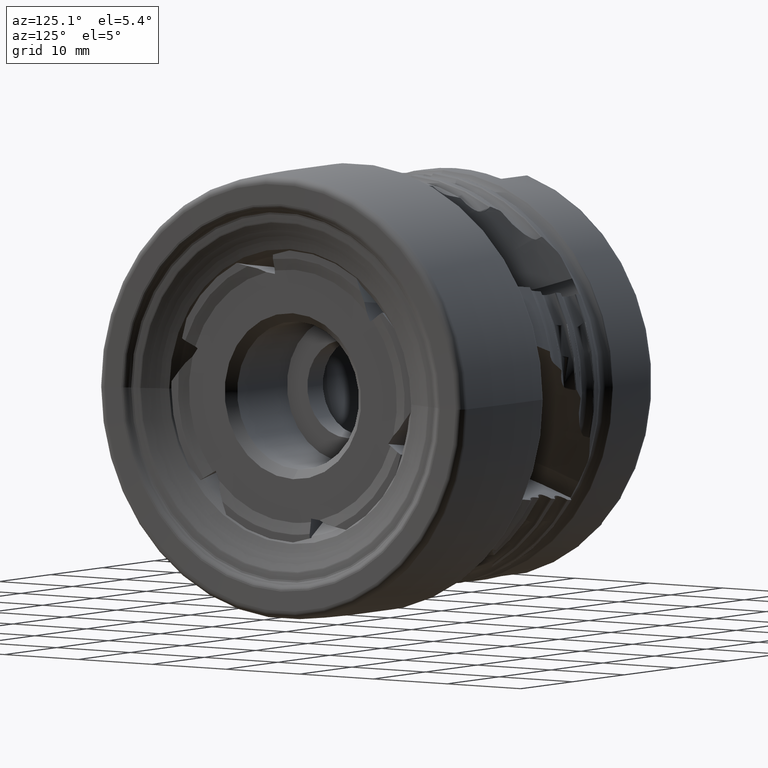
[diagram: clean part render]
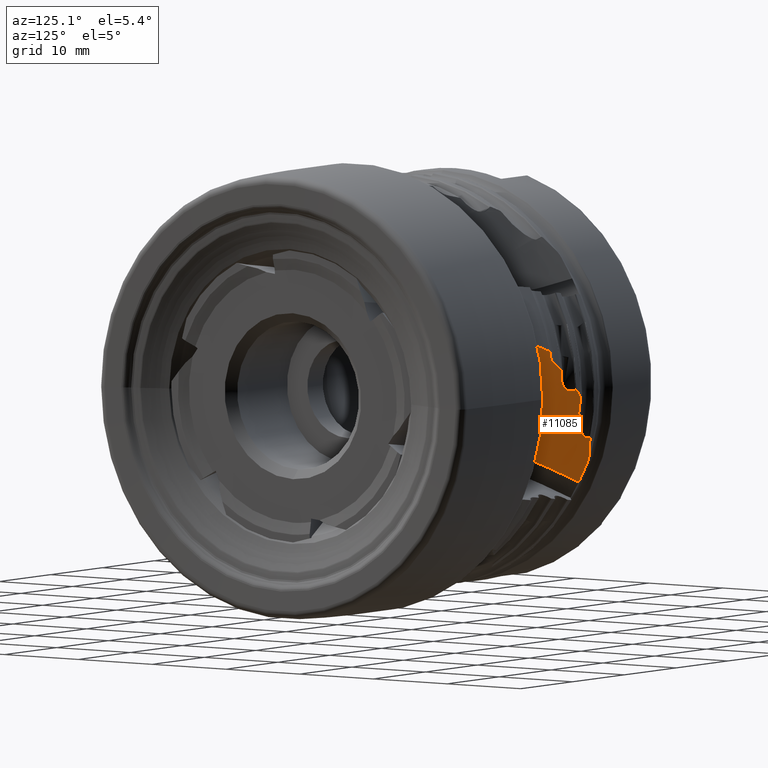
[diagram: same view with one face highlighted and labeled with its STEP entity id]
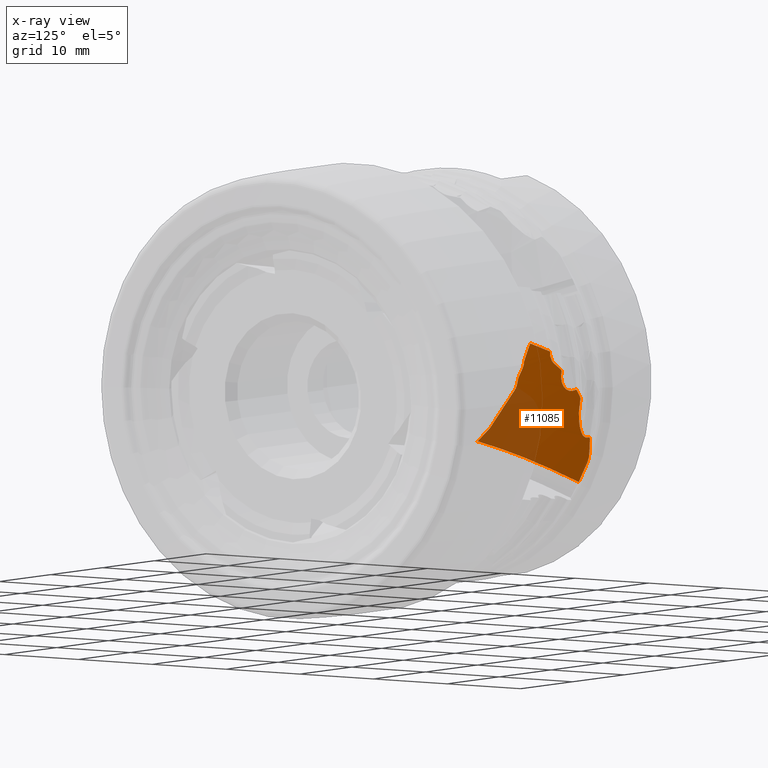
[diagram: x-ray of the same camera — body ghosted, the highlighted face saturated]
A machine part, auxiliary view. The second image highlights one B-rep face of the part: STEP entity #11085.
The next image is the same camera in x-ray: the body ghosted, the highlighted face saturated — about 33% of this face is hidden behind the body in this view.
In plain terms, the highlighted conical surface has half-angle 10 deg.
Its self-contained STEP definition (entity closure, byte-faithful):
#41 = CARTESIAN_POINT ( 'NONE',  ( -15.26855124882291470, 21.81667028635836658, 4.503115789526411561 ) ) ;
#110 = CARTESIAN_POINT ( 'NONE',  ( -14.87005169857932962, 22.43625750165416832, 5.422201539355816280 ) ) ;
#142 = EDGE_CURVE ( 'NONE', #6212, #18076, #7275, .T. ) ;
#169 = B_SPLINE_CURVE_WITH_KNOTS ( 'NONE', 3,
 ( #1466, #12750, #9795, #4365 ),
 .UNSPECIFIED., .F., .F.,
 ( 4, 4 ),
 ( 5.091962965538693822E-07, 0.0004996637936394589643 ),
 .UNSPECIFIED. ) ;
#239 = CARTESIAN_POINT ( 'NONE',  ( -27.80607010177604010, 21.30551822010416529, -8.427565206542489307 ) ) ;
#244 = CARTESIAN_POINT ( 'NONE',  ( -15.90896133935691381, 20.99278452312187326, 3.205419004330242849 ) ) ;
#321 = VERTEX_POINT ( 'NONE', #10061 ) ;
#343 = B_SPLINE_CURVE_WITH_KNOTS ( 'NONE', 3,
 ( #5829, #7295, #17347, #1559 ),
 .UNSPECIFIED., .F., .F.,
 ( 4, 4 ),
 ( 2.201865133479440219E-06, 0.0002293505864840517713 ),
 .UNSPECIFIED. ) ;
#346 = B_SPLINE_CURVE_WITH_KNOTS ( 'NONE', 3,
 ( #3306, #8888, #1674, #8753 ),
 .UNSPECIFIED., .F., .F.,
 ( 4, 4 ),
 ( 0.001640914403538714424, 0.005217021135695581145 ),
 .UNSPECIFIED. ) ;
#368 = EDGE_CURVE ( 'NONE', #6788, #18028, #343, .T. ) ;
#387 = CARTESIAN_POINT ( 'NONE',  ( -16.17100455448463947, 20.29929194143642945, 2.209252760156967366 ) ) ;
#450 = CARTESIAN_POINT ( 'NONE',  ( -23.40651101225501307, 22.99459289987852628, 0.2371045010552281507 ) ) ;
#451 = CARTESIAN_POINT ( 'NONE',  ( -16.17100455448463947, 20.29929194143642945, 2.209252760156967366 ) ) ;
#454 = CARTESIAN_POINT ( 'NONE',  ( -27.44702365024415158, 21.95627381036220882, -6.885970354315569253 ) ) ;
#515 = ORIENTED_EDGE ( 'NONE', *, *, #10284, .F. ) ;
#586 = CONICAL_SURFACE ( 'NONE', #16912, 22.64713511537622637, 0.1745329251994370001 ) ;
#587 = CARTESIAN_POINT ( 'NONE',  ( -23.22472531801336615, 22.80835589659339746, 0.1894172346905117488 ) ) ;
#615 = CARTESIAN_POINT ( 'NONE',  ( -16.85131394500600166, 18.82961904891037364, 4.439181376403599139E-15 ) ) ;
#647 = CARTESIAN_POINT ( 'NONE',  ( -24.26766911949633965, 22.94176245283136240, -0.8461488794678320158 ) ) ;
#739 = ORIENTED_EDGE ( 'NONE', *, *, #17459, .T. ) ;
#752 = EDGE_CURVE ( 'NONE', #2165, #14771, #6004, .T. ) ;
#777 = CARTESIAN_POINT ( 'NONE',  ( -22.47094346793913644, 22.30390003859425363, 0.3121301263947673932 ) ) ;
#933 = B_SPLINE_CURVE_WITH_KNOTS ( 'NONE', 3,
 ( #8519, #15807, #110, #18668 ),
 .UNSPECIFIED., .F., .F.,
 ( 4, 4 ),
 ( 5.997672983098196866E-07, 0.001228678167327259228 ),
 .UNSPECIFIED. ) ;
#989 = CARTESIAN_POINT ( 'NONE',  ( -20.68006665952766809, 22.84494059295221646, 2.666362929754161115 ) ) ;
#1024 = CARTESIAN_POINT ( 'NONE',  ( -28.02081468397080855, 20.06062570200377593, -10.53523919910422180 ) ) ;
#1057 = CARTESIAN_POINT ( 'NONE',  ( -20.78942813644570009, 22.79823092200463819, 2.514633919070633272 ) ) ;
#1175 = CARTESIAN_POINT ( 'NONE',  ( -25.41797234707089714, 21.93879845486146252, -3.716995152795235402 ) ) ;
#1197 = CARTESIAN_POINT ( 'NONE',  ( -20.64021278201283138, 22.84162297052917623, 2.694486977551385110 ) ) ;
#1301 = ORIENTED_EDGE ( 'NONE', *, *, #2820, .F. ) ;
#1353 = CARTESIAN_POINT ( 'NONE',  ( -14.69161471558946630, 22.73932985926478878, 5.858741120913173894 ) ) ;
#1356 = CARTESIAN_POINT ( 'NONE',  ( -16.85131394500600166, 18.82961904891037364, 4.439181376403599139E-15 ) ) ;
#1364 = CARTESIAN_POINT ( 'NONE',  ( -15.90896133935691381, 20.99278452312187326, 3.205419004330242849 ) ) ;
#1387 = CARTESIAN_POINT ( 'NONE',  ( -16.47749897545964259, 14.44581455445120532, -5.420247445598623592 ) ) ;
#1427 = EDGE_LOOP ( 'NONE', ( #3857, #1855, #4486, #4280, #2306, #3650, #1536, #17981, #17652, #7991, #15687, #13807, #15573, #17054, #8667, #17807, #13506, #739, #1868, #515, #15563, #17215, #13479, #6257, #11718, #5004, #12899, #17534, #9396, #3400, #1301, #14931, #4830 ) ) ;
#1466 = CARTESIAN_POINT ( 'NONE',  ( -16.45361573362454521, 19.89302954922868594, 1.559304394736011679 ) ) ;
#1483 = B_SPLINE_CURVE_WITH_KNOTS ( 'NONE', 3,
 ( #9599, #8271, #8140, #18283 ),
 .UNSPECIFIED., .F., .F.,
 ( 4, 4 ),
 ( 6.056968312710512013E-07, 0.0003393238176195059979 ),
 .UNSPECIFIED. ) ;
#1536 = ORIENTED_EDGE ( 'NONE', *, *, #18369, .F. ) ;
#1559 = CARTESIAN_POINT ( 'NONE',  ( -16.81930266459457712, 19.37228896963575409, 0.7114021565693718907 ) ) ;
#1660 = CARTESIAN_POINT ( 'NONE',  ( -16.14970370575481695, 20.36864433607288660, 2.307136152968963572 ) ) ;
#1674 = CARTESIAN_POINT ( 'NONE',  ( -16.90536003777134511, 23.07924280636870407, 5.451268094262448294 ) ) ;
#1837 = EDGE_CURVE ( 'NONE', #321, #2693, #2872, .T. ) ;
#1855 = ORIENTED_EDGE ( 'NONE', *, *, #4306, .F. ) ;
#1868 = ORIENTED_EDGE ( 'NONE', *, *, #15498, .F. ) ;
#1898 = CARTESIAN_POINT ( 'NONE',  ( -15.80531335188685027, 21.14735382403872421, 3.445143056737726361 ) ) ;
#1906 = EDGE_CURVE ( 'NONE', #15720, #10535, #14409, .T. ) ;
#2165 = VERTEX_POINT ( 'NONE', #12065 ) ;
#2204 = CARTESIAN_POINT ( 'NONE',  ( -24.18147131725948995, 22.99014681749628863, -0.6751719861068721240 ) ) ;
#2306 = ORIENTED_EDGE ( 'NONE', *, *, #15414, .F. ) ;
#2347 = B_SPLINE_CURVE_WITH_KNOTS ( 'NONE', 3,
 ( #6928, #8342, #16879, #2564 ),
 .UNSPECIFIED., .F., .F.,
 ( 4, 4 ),
 ( 7.979400356759385171E-07, 0.0002821608461363248467 ),
 .UNSPECIFIED. ) ;
#2383 = EDGE_CURVE ( 'NONE', #7410, #6788, #10516, .T. ) ;
#2564 = CARTESIAN_POINT ( 'NONE',  ( -15.90896133935691381, 20.99278452312187326, 3.205419004330242849 ) ) ;
#2583 = CARTESIAN_POINT ( 'NONE',  ( -24.14021278201282783, 22.99155670236084248, -0.6231535943296789837 ) ) ;
#2682 = CARTESIAN_POINT ( 'NONE',  ( -16.81930266459457712, 19.37228896963575409, 0.7114021565693718907 ) ) ;
#2693 = VERTEX_POINT ( 'NONE', #13960 ) ;
#2723 = B_SPLINE_CURVE_WITH_KNOTS ( 'NONE', 3,
 ( #16666, #7987, #18264, #12291 ),
 .UNSPECIFIED., .F., .F.,
 ( 4, 4 ),
 ( 9.501387037158697003E-07, 0.0005963306843290852111 ),
 .UNSPECIFIED. ) ;
#2812 = CARTESIAN_POINT ( 'NONE',  ( -14.61659842400750620, 22.91153607852224994, 6.097392518328906164 ) ) ;
#2820 = EDGE_CURVE ( 'NONE', #12840, #11248, #5035, .T. ) ;
#2863 = CARTESIAN_POINT ( 'NONE',  ( -26.50666080885802600, 21.95707442417994315, -5.318131793748561265 ) ) ;
#2872 = B_SPLINE_CURVE_WITH_KNOTS ( 'NONE', 3,
 ( #7057, #1353, #11376, #2812 ),
 .UNSPECIFIED., .F., .F.,
 ( 4, 4 ),
 ( 8.163396815924626714E-07, 0.0004563742919327287554 ),
 .UNSPECIFIED. ) ;
#2908 = CARTESIAN_POINT ( 'NONE',  ( -24.30607010177588378, 22.89159018406107293, -0.9612808032641314560 ) ) ;
#2994 = CARTESIAN_POINT ( 'NONE',  ( -26.14898016930109037, 21.81915652623611024, -4.950721107140523713 ) ) ;
#3113 = CARTESIAN_POINT ( 'NONE',  ( -23.29392989822432014, 22.91040556069122403, 0.2495575733127972651 ) ) ;
#3306 = CARTESIAN_POINT ( 'NONE',  ( -14.61659842400750620, 22.91153607852224994, 6.097392518328906164 ) ) ;
#3397 = CARTESIAN_POINT ( 'NONE',  ( -26.80047387179308060, 22.29234182621327420, -5.333441569371050406 ) ) ;
#3400 = ORIENTED_EDGE ( 'NONE', *, *, #7259, .F. ) ;
#3414 = CARTESIAN_POINT ( 'NONE',  ( -24.21337165111777878, 22.97719146188154937, -0.7316888342751988183 ) ) ;
#3540 = CARTESIAN_POINT ( 'NONE',  ( -22.58510316870466994, 22.34148128584305937, 0.2457448873278721968 ) ) ;
#3650 = ORIENTED_EDGE ( 'NONE', *, *, #13900, .F. ) ;
#3771 = DIRECTION ( 'NONE',  ( 0.1391731009600657709, -0.4951340343707951730, -0.8575973040867490571 ) ) ;
#3832 = DIRECTION ( 'NONE',  ( 0.0000000000000000000, 0.8660254037844328234, -0.5000000000000099920 ) ) ;
#3857 = ORIENTED_EDGE ( 'NONE', *, *, #1837, .F. ) ;
#3887 = VERTEX_POINT ( 'NONE', #6789 ) ;
#3891 = CARTESIAN_POINT ( 'NONE',  ( -16.78389916639701340, 19.45945674204698150, 0.8411767779509065068 ) ) ;
#4138 = B_SPLINE_CURVE_WITH_KNOTS ( 'NONE', 3,
 ( #14830, #2204, #3414, #647, #10572, #10629 ),
 .UNSPECIFIED., .F., .F.,
 ( 4, 2, 4 ),
 ( 3.173699477123201477E-07, 0.0001968150992286581732, 0.0003933128285096040128 ),
 .UNSPECIFIED. ) ;
#4254 = B_SPLINE_CURVE_WITH_KNOTS ( 'NONE', 3,
 ( #4455, #13278, #4579, #4640 ),
 .UNSPECIFIED., .F., .F.,
 ( 4, 4 ),
 ( 2.040707912243481854E-06, 0.002459269705208161870 ),
 .UNSPECIFIED. ) ;
#4280 = ORIENTED_EDGE ( 'NONE', *, *, #16023, .F. ) ;
#4306 = EDGE_CURVE ( 'NONE', #10535, #321, #933, .T. ) ;
#4319 = B_SPLINE_CURVE_WITH_KNOTS ( 'NONE', 3,
 ( #14752, #3397, #8852, #10557, #7669, #7557, #16197, #16145, #9044, #7617 ),
 .UNSPECIFIED., .F., .F.,
 ( 4, 2, 2, 2, 4 ),
 ( 4.117319824116709145E-07, 4.073260126436114415E-05, 8.105347054631062691E-05, 0.0001616952091102095653, 0.0003229786862380077403 ),
 .UNSPECIFIED. ) ;
#4337 = CARTESIAN_POINT ( 'NONE',  ( -16.25518053409054176, 20.12791270057322990, 1.952507508722820528 ) ) ;
#4365 = CARTESIAN_POINT ( 'NONE',  ( -16.25518053409054176, 20.12791270057322990, 1.952507508722820528 ) ) ;
#4455 = CARTESIAN_POINT ( 'NONE',  ( -27.80607010177604010, 21.30551822010416529, -8.427565206542489307 ) ) ;
#4462 = CARTESIAN_POINT ( 'NONE',  ( -16.76602882753733326, 19.50302366377869845, 0.9060293372061447581 ) ) ;
#4486 = ORIENTED_EDGE ( 'NONE', *, *, #1906, .F. ) ;
#4558 = CARTESIAN_POINT ( 'NONE',  ( -16.10663191695068619, 20.50736126770210177, 2.502791241297559033 ) ) ;
#4579 = CARTESIAN_POINT ( 'NONE',  ( -27.96274391729710729, 20.48819653159388565, -9.838877487915564046 ) ) ;
#4640 = CARTESIAN_POINT ( 'NONE',  ( -28.02081468397080855, 20.06062570200377593, -10.53523919910422180 ) ) ;
#4685 = B_SPLINE_CURVE_WITH_KNOTS ( 'NONE', 3,
 ( #14246, #17110, #18685, #9949, #10009, #14312, #15767, #5727 ),
 .UNSPECIFIED., .F., .F.,
 ( 4, 2, 2, 4 ),
 ( 4.059168419037792843E-07, 0.001149958348928645062, 0.001724734564972013086, 0.002299510781015381110 ),
 .UNSPECIFIED. ) ;
#4830 = ORIENTED_EDGE ( 'NONE', *, *, #7449, .F. ) ;
#5004 = ORIENTED_EDGE ( 'NONE', *, *, #10156, .F. ) ;
#5035 = B_SPLINE_CURVE_WITH_KNOTS ( 'NONE', 3,
 ( #9756, #17037, #8417, #1197 ),
 .UNSPECIFIED., .F., .F.,
 ( 4, 4 ),
 ( 2.335929685874925585E-07, 0.001269638215701828594 ),
 .UNSPECIFIED. ) ;
#5323 = CARTESIAN_POINT ( 'NONE',  ( -16.65317086511453937, 19.67090525702619530, 1.177707117520940816 ) ) ;
#5348 = CIRCLE ( 'NONE', #17883, 26.60000000000000142 ) ;
#5396 = CARTESIAN_POINT ( 'NONE',  ( -16.80165780577470258, 19.41587911568378289, 0.7763008345492691253 ) ) ;
#5462 = B_SPLINE_CURVE_WITH_KNOTS ( 'NONE', 3,
 ( #1364, #8467, #14230, #15695 ),
 .UNSPECIFIED., .F., .F.,
 ( 4, 4 ),
 ( 5.889387353570528641E-07, 0.0003040723738602136325 ),
 .UNSPECIFIED. ) ;
#5610 = EDGE_CURVE ( 'NONE', #6919, #7410, #18414, .T. ) ;
#5611 = VERTEX_POINT ( 'NONE', #8974 ) ;
#5727 = CARTESIAN_POINT ( 'NONE',  ( -19.57899999999999707, 22.74955201796856841, 3.384949479939448835 ) ) ;
#5744 = CARTESIAN_POINT ( 'NONE',  ( -26.31763482172235413, 21.86045836076529625, -5.153667214521905571 ) ) ;
#5758 = VERTEX_POINT ( 'NONE', #16882 ) ;
#5772 = CARTESIAN_POINT ( 'NONE',  ( -27.78990556497908315, 21.38756636924111021, -8.285356641722373183 ) ) ;
#5829 = CARTESIAN_POINT ( 'NONE',  ( -16.84005700675518824, 19.23829927560531416, 0.5291590201106586289 ) ) ;
#5853 = VERTEX_POINT ( 'NONE', #387 ) ;
#6004 = B_SPLINE_CURVE_WITH_KNOTS ( 'NONE', 3,
 ( #5323, #13974, #15435, #6812 ),
 .UNSPECIFIED., .F., .F.,
 ( 4, 4 ),
 ( 4.917082214325968314E-07, 0.0004850305958954704557 ),
 .UNSPECIFIED. ) ;
#6212 = VERTEX_POINT ( 'NONE', #17783 ) ;
#6257 = ORIENTED_EDGE ( 'NONE', *, *, #18086, .F. ) ;
#6403 = CARTESIAN_POINT ( 'NONE',  ( -16.75194087550767108, 15.35380829058767560, -4.404451069025665966 ) ) ;
#6406 = CARTESIAN_POINT ( 'NONE',  ( -22.04999999999994387, 22.24066103879084366, 0.6445902245692860522 ) ) ;
#6472 = CARTESIAN_POINT ( 'NONE',  ( -15.50847886372658557, 21.44246804675199769, 3.938853875497049017 ) ) ;
#6522 = CARTESIAN_POINT ( 'NONE',  ( -22.14924809175642295, 22.24334261363025078, 0.5520663314348417394 ) ) ;
#6788 = VERTEX_POINT ( 'NONE', #10884 ) ;
#6789 = CARTESIAN_POINT ( 'NONE',  ( -20.80607010177602234, 22.77781366641420036, 2.473897030159260879 ) ) ;
#6812 = CARTESIAN_POINT ( 'NONE',  ( -16.45361573362454521, 19.89302954922868594, 1.559304394736011679 ) ) ;
#6815 = CARTESIAN_POINT ( 'NONE',  ( -16.76602882753733326, 19.50302366377869845, 0.9060293372061447581 ) ) ;
#6878 = CARTESIAN_POINT ( 'NONE',  ( -23.45978721798716293, 22.99926823209815652, 0.1834687657352973011 ) ) ;
#6915 = CARTESIAN_POINT ( 'NONE',  ( -22.04999999999994387, 22.24066103879084366, 0.6445902245692860522 ) ) ;
#6919 = VERTEX_POINT ( 'NONE', #11272 ) ;
#6920 = EDGE_CURVE ( 'NONE', #14647, #12840, #4685, .T. ) ;
#6926 = CARTESIAN_POINT ( 'NONE',  ( -24.30607010177588378, 22.89159018406107293, -0.9612808032641314560 ) ) ;
#6928 = CARTESIAN_POINT ( 'NONE',  ( -15.97985353949620269, 20.83946486264967746, 2.980402421382444267 ) ) ;
#6990 = CARTESIAN_POINT ( 'NONE',  ( -25.29409862967760958, 21.99732374772320043, -3.464978002444697669 ) ) ;
#7057 = CARTESIAN_POINT ( 'NONE',  ( -14.72881838413048428, 22.65334869105859994, 5.739231838391088303 ) ) ;
#7115 = B_SPLINE_CURVE_WITH_KNOTS ( 'NONE', 3,
 ( #3113, #10399, #7571, #450, #14586, #7515 ),
 .UNSPECIFIED., .F., .F.,
 ( 4, 2, 4 ),
 ( 3.927169407414424580E-07, 0.0001121091843428903925, 0.0002238256517450392909 ),
 .UNSPECIFIED. ) ;
#7166 = CARTESIAN_POINT ( 'NONE',  ( -16.45361573362454521, 19.89302954922868594, 1.559304394736011679 ) ) ;
#7239 = CARTESIAN_POINT ( 'NONE',  ( -27.76896784328286216, 21.46464480649369122, -8.141281594835193758 ) ) ;
#7259 = EDGE_CURVE ( 'NONE', #11248, #3887, #15744, .T. ) ;
#7275 = B_SPLINE_CURVE_WITH_KNOTS ( 'NONE', 3,
 ( #16219, #7575, #454, #10454 ),
 .UNSPECIFIED., .F., .F.,
 ( 4, 4 ),
 ( 5.560734022995215786E-07, 0.002183789727091150958 ),
 .UNSPECIFIED. ) ;
#7287 = B_SPLINE_CURVE_WITH_KNOTS ( 'NONE', 3,
 ( #8334, #18280, #11034, #16868 ),
 .UNSPECIFIED., .F., .F.,
 ( 4, 4 ),
 ( 7.655759633891584587E-07, 0.0003207258295503649268 ),
 .UNSPECIFIED. ) ;
#7295 = CARTESIAN_POINT ( 'NONE',  ( -16.83317914987259201, 19.28296523558622155, 0.5899093106922244090 ) ) ;
#7410 = VERTEX_POINT ( 'NONE', #1356 ) ;
#7449 = EDGE_CURVE ( 'NONE', #2693, #14647, #346, .T. ) ;
#7515 = CARTESIAN_POINT ( 'NONE',  ( -23.45978721798716293, 22.99926823209815652, 0.1834687657352973011 ) ) ;
#7557 = CARTESIAN_POINT ( 'NONE',  ( -26.86478883395756156, 22.34016500045726517, -5.373566064035836476 ) ) ;
#7571 = CARTESIAN_POINT ( 'NONE',  ( -23.34422859238959447, 22.96526129438188946, 0.2673103197873011871 ) ) ;
#7575 = CARTESIAN_POINT ( 'NONE',  ( -27.22152200162650004, 22.15273467252684014, -6.222519385360984145 ) ) ;
#7617 = CARTESIAN_POINT ( 'NONE',  ( -26.95978721798715583, 22.31735395201003058, -5.561988185954906072 ) ) ;
#7669 = CARTESIAN_POINT ( 'NONE',  ( -26.83787952557930012, 22.32777069424870220, -5.346295932674219209 ) ) ;
#7690 = CARTESIAN_POINT ( 'NONE',  ( -22.04999999999994387, 22.24066103879084366, 0.6445902245692860522 ) ) ;
#7987 = CARTESIAN_POINT ( 'NONE',  ( -16.06485614051097599, 20.61803975610817119, 2.662139149099508106 ) ) ;
#7991 = ORIENTED_EDGE ( 'NONE', *, *, #17311, .F. ) ;
#8140 = CARTESIAN_POINT ( 'NONE',  ( -16.69112504211072689, 19.61497980294176813, 1.087265284715974056 ) ) ;
#8271 = CARTESIAN_POINT ( 'NONE',  ( -16.72874684920491006, 19.55902227562535955, 0.9967052012828938601 ) ) ;
#8276 = CARTESIAN_POINT ( 'NONE',  ( -25.05997663747112014, 22.13114644320063107, -2.963239422900530773 ) ) ;
#8334 = CARTESIAN_POINT ( 'NONE',  ( -16.25518053409054176, 20.12791270057322990, 1.952507508722820528 ) ) ;
#8342 = CARTESIAN_POINT ( 'NONE',  ( -15.95634574872419797, 20.89056204772044367, 3.055453065851434058 ) ) ;
#8344 = CARTESIAN_POINT ( 'NONE',  ( -20.64021278201283138, 22.84162297052917623, 2.694486977551385110 ) ) ;
#8367 = CARTESIAN_POINT ( 'NONE',  ( -16.84005700675518824, 19.23829927560531416, 0.5291590201106586289 ) ) ;
#8417 = CARTESIAN_POINT ( 'NONE',  ( -20.29504106175960843, 22.81288926855789612, 2.938067441084319498 ) ) ;
#8428 = CARTESIAN_POINT ( 'NONE',  ( -27.80607010177604010, 21.30551822010416529, -8.427565206542489307 ) ) ;
#8447 = CARTESIAN_POINT ( 'NONE',  ( -20.80607010177602234, 22.77781366641420036, 2.473897030159260879 ) ) ;
#8452 = EDGE_CURVE ( 'NONE', #18129, #6212, #4319, .T. ) ;
#8467 = CARTESIAN_POINT ( 'NONE',  ( -15.87460725026492270, 21.04429004314799556, 3.285422771920190055 ) ) ;
#8519 = CARTESIAN_POINT ( 'NONE',  ( -15.14553962347132376, 22.00447026194424538, 4.783472062333293806 ) ) ;
#8540 = CARTESIAN_POINT ( 'NONE',  ( -23.29392989822432014, 22.91040556069122403, 0.2495575733127972651 ) ) ;
#8645 = CARTESIAN_POINT ( 'NONE',  ( -27.64021278201137832, 21.72542010344207952, -7.550239819300737842 ) ) ;
#8667 = ORIENTED_EDGE ( 'NONE', *, *, #2383, .F. ) ;
#8753 = CARTESIAN_POINT ( 'NONE',  ( -17.99999999999999645, 23.18409937771510343, 4.961271716428176326 ) ) ;
#8820 = CARTESIAN_POINT ( 'NONE',  ( -15.50847886372658557, 21.44246804675199769, 3.938853875497049017 ) ) ;
#8852 = CARTESIAN_POINT ( 'NONE',  ( -26.80886016426049423, 22.30342389184332674, -5.332010430501711973 ) ) ;
#8888 = CARTESIAN_POINT ( 'NONE',  ( -15.77665595735320814, 22.98383474420085193, 5.825723361038326331 ) ) ;
#8974 = CARTESIAN_POINT ( 'NONE',  ( -25.54999999999999005, 21.89354496434932429, -3.966760503737820187 ) ) ;
#9044 = CARTESIAN_POINT ( 'NONE',  ( -26.94067509475124922, 22.32937460861800361, -5.513755568537078489 ) ) ;
#9065 = CARTESIAN_POINT ( 'NONE',  ( -22.25245308539774314, 22.25479541098812319, 0.4657751535669206189 ) ) ;
#9160 = CARTESIAN_POINT ( 'NONE',  ( -16.90212305840698193, 16.81826697093279321, -2.605961294605958489 ) ) ;
#9243 = EDGE_CURVE ( 'NONE', #13379, #5853, #7287, .T. ) ;
#9396 = ORIENTED_EDGE ( 'NONE', *, *, #12689, .F. ) ;
#9462 = EDGE_CURVE ( 'NONE', #5853, #14102, #11989, .T. ) ;
#9513 = EDGE_CURVE ( 'NONE', #11736, #6919, #11507, .T. ) ;
#9535 = FACE_OUTER_BOUND ( 'NONE', #1427, .T. ) ;
#9551 = CARTESIAN_POINT ( 'NONE',  ( -20.64021278201283138, 22.84162297052917623, 2.694486977551385110 ) ) ;
#9599 = CARTESIAN_POINT ( 'NONE',  ( -16.76602882753733326, 19.50302366377869845, 0.9060293372061447581 ) ) ;
#9612 = CARTESIAN_POINT ( 'NONE',  ( -20.71290058898073383, 22.83803543414088466, 2.630292870984136666 ) ) ;
#9728 = CARTESIAN_POINT ( 'NONE',  ( -17.99999999999999645, 23.18409937771510343, 4.961271716428176326 ) ) ;
#9730 = CARTESIAN_POINT ( 'NONE',  ( -26.79392989822409277, 22.28130409122486810, -5.337831950529211333 ) ) ;
#9756 = CARTESIAN_POINT ( 'NONE',  ( -19.57899999999999707, 22.74955201796856841, 3.384949479939448835 ) ) ;
#9795 = CARTESIAN_POINT ( 'NONE',  ( -16.32210974550112326, 20.04965762066219526, 1.821812054571691597 ) ) ;
#9878 = B_SPLINE_CURVE_WITH_KNOTS ( 'NONE', 3,
 ( #1898, #11735, #17810, #13373 ),
 .UNSPECIFIED., .F., .F.,
 ( 4, 4 ),
 ( 4.413634125914239391E-07, 0.0006477075299693001859 ),
 .UNSPECIFIED. ) ;
#9949 = CARTESIAN_POINT ( 'NONE',  ( -18.81252761767578008, 22.79618477659926512, 3.967276056493671987 ) ) ;
#9973 = VERTEX_POINT ( 'NONE', #14629 ) ;
#10009 = CARTESIAN_POINT ( 'NONE',  ( -18.95566487426721025, 22.76745565573502006, 3.836954365033203196 ) ) ;
#10033 = CARTESIAN_POINT ( 'NONE',  ( -26.37810406465962387, 21.88376810854832399, -5.215945363602217277 ) ) ;
#10061 = CARTESIAN_POINT ( 'NONE',  ( -14.72881838413048428, 22.65334869105859994, 5.739231838391088303 ) ) ;
#10156 = EDGE_CURVE ( 'NONE', #9973, #18640, #14784, .T. ) ;
#10165 = CARTESIAN_POINT ( 'NONE',  ( -25.71776792278861734, 21.84225854977619719, -4.277295842519104774 ) ) ;
#10268 = CARTESIAN_POINT ( 'NONE',  ( -24.14021278201282783, 22.99155670236084248, -0.6231535943296789837 ) ) ;
#10284 = EDGE_CURVE ( 'NONE', #18076, #10954, #17338, .T. ) ;
#10399 = CARTESIAN_POINT ( 'NONE',  ( -23.31292661874583416, 22.93841828675985184, 0.2660661512327001654 ) ) ;
#10423 = EDGE_CURVE ( 'NONE', #10455, #13488, #15999, .T. ) ;
#10454 = CARTESIAN_POINT ( 'NONE',  ( -27.64021278201137832, 21.72542010344207952, -7.550239819300737842 ) ) ;
#10455 = VERTEX_POINT ( 'NONE', #6406 ) ;
#10489 = DIRECTION ( 'NONE',  ( 0.1391731009600657709, -0.4951340343707951175, -0.8575973040867489461 ) ) ;
#10500 = VERTEX_POINT ( 'NONE', #1024 ) ;
#10516 = B_SPLINE_CURVE_WITH_KNOTS ( 'NONE', 3,
 ( #11002, #12269, #11137, #8367 ),
 .UNSPECIFIED., .F., .F.,
 ( 4, 4 ),
 ( 0.004956782114515067422, 0.005625476760856101995 ),
 .UNSPECIFIED. ) ;
#10535 = VERTEX_POINT ( 'NONE', #12349 ) ;
#10557 = CARTESIAN_POINT ( 'NONE',  ( -26.82796721551796537, 22.32146964053153226, -5.338645950778342808 ) ) ;
#10572 = CARTESIAN_POINT ( 'NONE',  ( -24.28928606113966282, 22.91894069614726703, -0.9036215481361643542 ) ) ;
#10629 = CARTESIAN_POINT ( 'NONE',  ( -24.30607010177588378, 22.89159018406107293, -0.9612808032641314560 ) ) ;
#10636 = CARTESIAN_POINT ( 'NONE',  ( -23.13694570481051116, 22.70700085484321562, 0.1500735596659627247 ) ) ;
#10666 = CARTESIAN_POINT ( 'NONE',  ( -16.87853843680519716, 17.82364415123765156, -1.302717166571950580 ) ) ;
#10884 = CARTESIAN_POINT ( 'NONE',  ( -16.84005700675518824, 19.23829927560531416, 0.5291590201106586289 ) ) ;
#10954 = VERTEX_POINT ( 'NONE', #8428 ) ;
#11002 = CARTESIAN_POINT ( 'NONE',  ( -16.85131394500600166, 18.82961904891037364, 4.439181376403599139E-15 ) ) ;
#11034 = CARTESIAN_POINT ( 'NONE',  ( -16.19925751686114879, 20.24216625321583507, 2.123734229072726354 ) ) ;
#11085 = ADVANCED_FACE ( 'NONE', ( #9535 ), #586, .F. ) ;
#11109 = CARTESIAN_POINT ( 'NONE',  ( -24.94950255529099792, 22.20678983617963098, -2.712762368442516614 ) ) ;
#11137 = CARTESIAN_POINT ( 'NONE',  ( -16.84387385248330204, 19.10206059858848704, 0.3527830552448300572 ) ) ;
#11202 = VERTEX_POINT ( 'NONE', #15238 ) ;
#11248 = VERTEX_POINT ( 'NONE', #9551 ) ;
#11272 = CARTESIAN_POINT ( 'NONE',  ( -16.92008064741923690, 15.81259176123323051, -3.909076806913469149 ) ) ;
#11365 = CARTESIAN_POINT ( 'NONE',  ( -26.20282554538661302, 21.82801872453836012, -5.020859807548927911 ) ) ;
#11376 = CARTESIAN_POINT ( 'NONE',  ( -14.65420546457527173, 22.82539014306391678, 5.978128770155944238 ) ) ;
#11423 = CARTESIAN_POINT ( 'NONE',  ( -25.89823822507975848, 21.81243196034041532, -4.582681893206220103 ) ) ;
#11507 = B_SPLINE_CURVE_WITH_KNOTS ( 'NONE', 3,
 ( #16396, #13609, #6403, #11971 ),
 .UNSPECIFIED., .F., .F.,
 ( 4, 4 ),
 ( 0.001082138596355275558, 0.003166870107932933873 ),
 .UNSPECIFIED. ) ;
#11543 = CARTESIAN_POINT ( 'NONE',  ( -25.99333546667688921, 21.80513251133442409, -4.734071553085352768 ) ) ;
#11718 = ORIENTED_EDGE ( 'NONE', *, *, #16028, .F. ) ;
#11735 = CARTESIAN_POINT ( 'NONE',  ( -15.70754485708302006, 21.24558927450019041, 3.610501846773860102 ) ) ;
#11736 = VERTEX_POINT ( 'NONE', #1387 ) ;
#11789 = VERTEX_POINT ( 'NONE', #2908 ) ;
#11971 = CARTESIAN_POINT ( 'NONE',  ( -16.92008064741923690, 15.81259176123323051, -3.909076806913469149 ) ) ;
#11989 = B_SPLINE_CURVE_WITH_KNOTS ( 'NONE', 3,
 ( #451, #1660, #14522, #4558 ),
 .UNSPECIFIED., .F., .F.,
 ( 4, 4 ),
 ( 1.144004255662032326E-06, 0.0003666594224065966535 ),
 .UNSPECIFIED. ) ;
#12065 = CARTESIAN_POINT ( 'NONE',  ( -16.65317086511453937, 19.67090525702619530, 1.177707117520940816 ) ) ;
#12097 = CARTESIAN_POINT ( 'NONE',  ( -22.93308444148866343, 22.52960008560373595, 0.1324907185206199989 ) ) ;
#12134 = CARTESIAN_POINT ( 'NONE',  ( -16.92008064741923690, 15.81259176123323051, -3.909076806913469149 ) ) ;
#12211 = CARTESIAN_POINT ( 'NONE',  ( -8.589820469618077325, 36.97931950145538593, -17.14993979415675440 ) ) ;
#12269 = CARTESIAN_POINT ( 'NONE',  ( -16.84762757443437664, 18.96583449366234930, 0.1763962486948202901 ) ) ;
#12291 = CARTESIAN_POINT ( 'NONE',  ( -15.97985353949620269, 20.83946486264967746, 2.980402421382444267 ) ) ;
#12349 = CARTESIAN_POINT ( 'NONE',  ( -15.14553962347132376, 22.00447026194424538, 4.783472062333293806 ) ) ;
#12445 = CARTESIAN_POINT ( 'NONE',  ( -20.76754027262124680, 22.81486743919406734, 2.554709956759269929 ) ) ;
#12504 = CARTESIAN_POINT ( 'NONE',  ( -27.64021278201137832, 21.72542010344207952, -7.550239819300737842 ) ) ;
#12570 = CARTESIAN_POINT ( 'NONE',  ( -24.45192411117621845, 22.65391309941884046, -1.462342122271715228 ) ) ;
#12689 = EDGE_CURVE ( 'NONE', #3887, #10455, #18470, .T. ) ;
#12750 = CARTESIAN_POINT ( 'NONE',  ( -16.38826296259775361, 19.97137451260007168, 1.690741727563657815 ) ) ;
#12766 = B_SPLINE_CURVE_WITH_KNOTS ( 'NONE', 3,
 ( #13976, #5396, #3891, #6815 ),
 .UNSPECIFIED., .F., .F.,
 ( 4, 4 ),
 ( 9.084486231770888007E-07, 0.0002413443057869336960 ),
 .UNSPECIFIED. ) ;
#12840 = VERTEX_POINT ( 'NONE', #17610 ) ;
#12899 = ORIENTED_EDGE ( 'NONE', *, *, #15938, .F. ) ;
#13278 = CARTESIAN_POINT ( 'NONE',  ( -27.88634156128971853, 20.89807538617994709, -9.133758597473088159 ) ) ;
#13373 = CARTESIAN_POINT ( 'NONE',  ( -15.50847886372658557, 21.44246804675199769, 3.938853875497049017 ) ) ;
#13379 = VERTEX_POINT ( 'NONE', #4337 ) ;
#13442 = CARTESIAN_POINT ( 'NONE',  ( -16.10663191695068619, 20.50736126770210177, 2.502791241297559033 ) ) ;
#13479 = ORIENTED_EDGE ( 'NONE', *, *, #15909, .F. ) ;
#13488 = VERTEX_POINT ( 'NONE', #8540 ) ;
#13506 = ORIENTED_EDGE ( 'NONE', *, *, #9513, .F. ) ;
#13558 = CARTESIAN_POINT ( 'NONE',  ( -23.29392989822432014, 22.91040556069122403, 0.2495575733127972651 ) ) ;
#13609 = CARTESIAN_POINT ( 'NONE',  ( -16.60291921425177009, 14.89821801340873542, -4.907777757596294421 ) ) ;
#13807 = ORIENTED_EDGE ( 'NONE', *, *, #17144, .F. ) ;
#13900 = EDGE_CURVE ( 'NONE', #11202, #17725, #2347, .T. ) ;
#13960 = CARTESIAN_POINT ( 'NONE',  ( -14.61659842400750620, 22.91153607852224994, 6.097392518328906164 ) ) ;
#13974 = CARTESIAN_POINT ( 'NONE',  ( -16.58747538633154051, 19.74503072243938107, 1.305287626092045628 ) ) ;
#13976 = CARTESIAN_POINT ( 'NONE',  ( -16.81930266459457712, 19.37228896963575409, 0.7114021565693718907 ) ) ;
#14102 = VERTEX_POINT ( 'NONE', #13442 ) ;
#14230 = CARTESIAN_POINT ( 'NONE',  ( -15.84005649913973102, 21.09581154306644279, 3.365331206479720727 ) ) ;
#14246 = CARTESIAN_POINT ( 'NONE',  ( -17.99999999999999645, 23.18409937771510343, 4.961271716428176326 ) ) ;
#14311 = VERTEX_POINT ( 'NONE', #4462 ) ;
#14312 = CARTESIAN_POINT ( 'NONE',  ( -19.25485938735067393, 22.73699032733134828, 3.596455760806443802 ) ) ;
#14333 = CARTESIAN_POINT ( 'NONE',  ( -26.57398537473117628, 22.00806521477208477, -5.355594699616879950 ) ) ;
#14402 = CARTESIAN_POINT ( 'NONE',  ( -21.11007421921937777, 22.48477784482492936, 1.831814497350127802 ) ) ;
#14409 = B_SPLINE_CURVE_WITH_KNOTS ( 'NONE', 3,
 ( #8820, #15802, #41, #17256 ),
 .UNSPECIFIED., .F., .F.,
 ( 4, 4 ),
 ( 6.041803615166678503E-07, 0.001078078664297240372 ),
 .UNSPECIFIED. ) ;
#14522 = CARTESIAN_POINT ( 'NONE',  ( -16.12824450410439070, 20.43799959937616251, 2.404982785793340572 ) ) ;
#14586 = CARTESIAN_POINT ( 'NONE',  ( -23.43477312857718076, 22.99904579135651161, 0.2113534832438832833 ) ) ;
#14629 = CARTESIAN_POINT ( 'NONE',  ( -23.45978721798716293, 22.99926823209815652, 0.1834687657352973011 ) ) ;
#14647 = VERTEX_POINT ( 'NONE', #9728 ) ;
#14752 = CARTESIAN_POINT ( 'NONE',  ( -26.79392989822409277, 22.28130409122486810, -5.337831950529211333 ) ) ;
#14771 = VERTEX_POINT ( 'NONE', #7166 ) ;
#14784 = B_SPLINE_CURVE_WITH_KNOTS ( 'NONE', 3,
 ( #6878, #15699, #18553, #2583 ),
 .UNSPECIFIED., .F., .F.,
 ( 4, 4 ),
 ( 2.993495126012489937E-07, 0.001055608805372209658 ),
 .UNSPECIFIED. ) ;
#14830 = CARTESIAN_POINT ( 'NONE',  ( -24.14021278201282783, 22.99155670236084248, -0.6231535943296789837 ) ) ;
#14931 = ORIENTED_EDGE ( 'NONE', *, *, #6920, .F. ) ;
#15067 = CARTESIAN_POINT ( 'NONE',  ( -22.81716063986614529, 22.45411760542811663, 0.1546742861973154914 ) ) ;
#15238 = CARTESIAN_POINT ( 'NONE',  ( -15.97985353949620269, 20.83946486264967746, 2.980402421382444267 ) ) ;
#15295 = EDGE_CURVE ( 'NONE', #18028, #14311, #12766, .T. ) ;
#15414 = EDGE_CURVE ( 'NONE', #17725, #5758, #5462, .T. ) ;
#15435 = CARTESIAN_POINT ( 'NONE',  ( -16.52094923153810413, 19.81906064322576100, 1.432489351047490311 ) ) ;
#15498 = EDGE_CURVE ( 'NONE', #10954, #10500, #4254, .T. ) ;
#15545 = CARTESIAN_POINT ( 'NONE',  ( -21.52336700998655417, 22.29469969128194506, 1.213382492560477255 ) ) ;
#15563 = ORIENTED_EDGE ( 'NONE', *, *, #142, .F. ) ;
#15573 = ORIENTED_EDGE ( 'NONE', *, *, #15295, .F. ) ;
#15610 = CARTESIAN_POINT ( 'NONE',  ( -20.93908838491636004, 22.61461970278024580, 2.148289392137163301 ) ) ;
#15669 = CARTESIAN_POINT ( 'NONE',  ( -26.79392989822409277, 22.28130409122486810, -5.337831950529211333 ) ) ;
#15687 = ORIENTED_EDGE ( 'NONE', *, *, #752, .F. ) ;
#15695 = CARTESIAN_POINT ( 'NONE',  ( -15.80531335188685027, 21.14735382403872421, 3.445143056737726361 ) ) ;
#15699 = CARTESIAN_POINT ( 'NONE',  ( -23.69480767786037845, 23.00135817943935734, -0.07852274709060005908 ) ) ;
#15720 = VERTEX_POINT ( 'NONE', #6472 ) ;
#15730 = CARTESIAN_POINT ( 'NONE',  ( -25.54999999999999005, 21.89354496434932429, -3.966760503737820187 ) ) ;
#15744 = B_SPLINE_CURVE_WITH_KNOTS ( 'NONE', 3,
 ( #8344, #989, #9612, #12445, #1057, #18475 ),
 .UNSPECIFIED., .F., .F.,
 ( 4, 2, 4 ),
 ( 2.409820520217759037E-07, 0.0001443527337540513231, 0.0002884644854560808737 ),
 .UNSPECIFIED. ) ;
#15767 = CARTESIAN_POINT ( 'NONE',  ( -19.41195355580360982, 22.73467716685659568, 3.484920307018833263 ) ) ;
#15802 = CARTESIAN_POINT ( 'NONE',  ( -15.38958662006736233, 21.62939606238451162, 4.221560473967969074 ) ) ;
#15807 = CARTESIAN_POINT ( 'NONE',  ( -15.00903231700847051, 22.22004333417874378, 5.103593619643957524 ) ) ;
#15909 = EDGE_CURVE ( 'NONE', #5611, #18129, #18479, .T. ) ;
#15938 = EDGE_CURVE ( 'NONE', #13488, #9973, #7115, .T. ) ;
#15999 = B_SPLINE_CURVE_WITH_KNOTS ( 'NONE', 3,
 ( #7690, #6522, #9065, #777, #3540, #15067, #12097, #10636, #587, #13558 ),
 .UNSPECIFIED., .F., .F.,
 ( 4, 2, 2, 2, 4 ),
 ( 0.002293540723026865104, 0.002695075197315239569, 0.003096609671603613601, 0.003498144145891987633, 0.003899678620180362099 ),
 .UNSPECIFIED. ) ;
#16010 = CARTESIAN_POINT ( 'NONE',  ( -27.71558005435581862, 21.60703823527521905, -7.848746503050880285 ) ) ;
#16023 = EDGE_CURVE ( 'NONE', #5758, #15720, #9878, .T. ) ;
#16028 = EDGE_CURVE ( 'NONE', #18640, #11789, #4138, .T. ) ;
#16145 = CARTESIAN_POINT ( 'NONE',  ( -26.91987354630803964, 22.33906056819751740, -5.465990936736765171 ) ) ;
#16197 = CARTESIAN_POINT ( 'NONE',  ( -26.87980553268248585, 22.34128144885068679, -5.396791555676548668 ) ) ;
#16219 = CARTESIAN_POINT ( 'NONE',  ( -26.95978721798715583, 22.31735395201003058, -5.561988185954906072 ) ) ;
#16396 = CARTESIAN_POINT ( 'NONE',  ( -16.47749897545964259, 14.44581455445120532, -5.420247445598623592 ) ) ;
#16496 = DIRECTION ( 'NONE',  ( 0.0000000000000000000, 0.8660254037844330455, -0.5000000000000098810 ) ) ;
#16666 = CARTESIAN_POINT ( 'NONE',  ( -16.10663191695068619, 20.50736126770210177, 2.502791241297559033 ) ) ;
#16868 = CARTESIAN_POINT ( 'NONE',  ( -16.17100455448463947, 20.29929194143642945, 2.209252760156967366 ) ) ;
#16878 = CARTESIAN_POINT ( 'NONE',  ( -24.63684478647235210, 22.45714534444830690, -1.961944018735317208 ) ) ;
#16879 = CARTESIAN_POINT ( 'NONE',  ( -15.93271408554044299, 20.94166777967328130, 3.130458860334734972 ) ) ;
#16882 = CARTESIAN_POINT ( 'NONE',  ( -15.80531335188685027, 21.14735382403872421, 3.445143056737726361 ) ) ;
#16912 = AXIS2_PLACEMENT_3D ( 'NONE', #17852, #10489, #16496 ) ;
#17037 = CARTESIAN_POINT ( 'NONE',  ( -19.94128234405424038, 22.78181188410477631, 3.168137528355599475 ) ) ;
#17054 = ORIENTED_EDGE ( 'NONE', *, *, #368, .F. ) ;
#17110 = CARTESIAN_POINT ( 'NONE',  ( -18.18881296181194429, 23.03189354887365070, 4.657604180274242722 ) ) ;
#17144 = EDGE_CURVE ( 'NONE', #14311, #2165, #1483, .T. ) ;
#17196 = CARTESIAN_POINT ( 'NONE',  ( -25.63219113664222348, 21.86537332197211825, -4.122246855516274344 ) ) ;
#17215 = ORIENTED_EDGE ( 'NONE', *, *, #8452, .F. ) ;
#17248 = CARTESIAN_POINT ( 'NONE',  ( -26.75048020262187976, 22.20801739158735444, -5.366982545789317882 ) ) ;
#17256 = CARTESIAN_POINT ( 'NONE',  ( -15.14553962347132376, 22.00447026194424538, 4.783472062333293806 ) ) ;
#17311 = EDGE_CURVE ( 'NONE', #14771, #13379, #169, .T. ) ;
#17338 = B_SPLINE_CURVE_WITH_KNOTS ( 'NONE', 3,
 ( #8645, #18680, #16010, #7239, #5772, #239 ),
 .UNSPECIFIED., .F., .F.,
 ( 4, 2, 4 ),
 ( 7.524403303437849041E-07, 0.0004949767655901695469, 0.0009892010908499951610 ),
 .UNSPECIFIED. ) ;
#17347 = CARTESIAN_POINT ( 'NONE',  ( -16.82626076161905360, 19.32762831254282432, 0.6506571051276055506 ) ) ;
#17380 = CARTESIAN_POINT ( 'NONE',  ( -26.69614980013806971, 22.13383601194000505, -5.380061006489219366 ) ) ;
#17438 = B_SPLINE_CURVE_WITH_KNOTS ( 'NONE', 3,
 ( #6926, #12570, #16878, #11109, #8276, #6990, #1175, #18408 ),
 .UNSPECIFIED., .F., .F.,
 ( 4, 2, 2, 4 ),
 ( 7.778976758487791396E-07, 0.001702448577930799423, 0.002553283918058272574, 0.003404119258185745508 ),
 .UNSPECIFIED. ) ;
#17459 = EDGE_CURVE ( 'NONE', #11736, #10500, #5348, .T. ) ;
#17534 = ORIENTED_EDGE ( 'NONE', *, *, #10423, .F. ) ;
#17610 = CARTESIAN_POINT ( 'NONE',  ( -19.57899999999999707, 22.74955201796856841, 3.384949479939448835 ) ) ;
#17652 = ORIENTED_EDGE ( 'NONE', *, *, #9243, .F. ) ;
#17725 = VERTEX_POINT ( 'NONE', #244 ) ;
#17783 = CARTESIAN_POINT ( 'NONE',  ( -26.95978721798715583, 22.31735395201003058, -5.561988185954906072 ) ) ;
#17807 = ORIENTED_EDGE ( 'NONE', *, *, #5610, .F. ) ;
#17810 = CARTESIAN_POINT ( 'NONE',  ( -15.60858457863332660, 21.34393739240751131, 3.775076752564523019 ) ) ;
#17852 = CARTESIAN_POINT ( 'NONE',  ( -11.70977670920688674, 48.07914058262254287, 2.075514273348354699 ) ) ;
#17883 = AXIS2_PLACEMENT_3D ( 'NONE', #12211, #3771, #3832 ) ;
#17981 = ORIENTED_EDGE ( 'NONE', *, *, #9462, .F. ) ;
#18028 = VERTEX_POINT ( 'NONE', #2682 ) ;
#18076 = VERTEX_POINT ( 'NONE', #12504 ) ;
#18086 = EDGE_CURVE ( 'NONE', #11789, #5611, #17438, .T. ) ;
#18129 = VERTEX_POINT ( 'NONE', #9730 ) ;
#18264 = CARTESIAN_POINT ( 'NONE',  ( -16.02258866313598418, 20.72873459770293891, 2.821345167519394348 ) ) ;
#18280 = CARTESIAN_POINT ( 'NONE',  ( -16.22731779223328985, 20.18504134427534424, 2.038152003865393969 ) ) ;
#18283 = CARTESIAN_POINT ( 'NONE',  ( -16.65317086511453937, 19.67090525702619530, 1.177707117520940816 ) ) ;
#18369 = EDGE_CURVE ( 'NONE', #14102, #11202, #2723, .T. ) ;
#18408 = CARTESIAN_POINT ( 'NONE',  ( -25.54999999999999005, 21.89354496434932429, -3.966760503737820187 ) ) ;
#18414 = B_SPLINE_CURVE_WITH_KNOTS ( 'NONE', 3,
 ( #12134, #9160, #10666, #615 ),
 .UNSPECIFIED., .F., .F.,
 ( 4, 4 ),
 ( 1.835512738378463176E-05, 0.004956782114515067422 ),
 .UNSPECIFIED. ) ;
#18470 = B_SPLINE_CURVE_WITH_KNOTS ( 'NONE', 3,
 ( #8447, #15610, #14402, #15545, #18646, #6915 ),
 .UNSPECIFIED., .F., .F.,
 ( 4, 2, 4 ),
 ( 5.746857821532978940E-07, 0.001147057704404509052, 0.002293540723026865104 ),
 .UNSPECIFIED. ) ;
#18475 = CARTESIAN_POINT ( 'NONE',  ( -20.80607010177602234, 22.77781366641420036, 2.473897030159260879 ) ) ;
#18479 = B_SPLINE_CURVE_WITH_KNOTS ( 'NONE', 3,
 ( #15730, #17196, #10165, #11423, #11543, #2994, #11365, #5744, #10033, #2863, #14333, #17380, #17248, #15669 ),
 .UNSPECIFIED., .F., .F.,
 ( 4, 2, 2, 2, 2, 2, 4 ),
 ( 0.003404119258185745508, 0.003933789536714524422, 0.004463459815243303770, 0.004728294954507694312, 0.004993130093772085720, 0.005257965233036477129, 0.005522800372300868538 ),
 .UNSPECIFIED. ) ;
#18553 = CARTESIAN_POINT ( 'NONE',  ( -23.92154501025846969, 22.99902900790729987, -0.3474592258272767298 ) ) ;
#18640 = VERTEX_POINT ( 'NONE', #10268 ) ;
#18646 = CARTESIAN_POINT ( 'NONE',  ( -21.76662146312305168, 22.23300446080460446, 0.9087694646792640052 ) ) ;
#18668 = CARTESIAN_POINT ( 'NONE',  ( -14.72881838413048428, 22.65334869105859994, 5.739231838391088303 ) ) ;
#18680 = CARTESIAN_POINT ( 'NONE',  ( -27.68397974266498096, 21.67312024053615005, -7.700729938852612477 ) ) ;
#18685 = CARTESIAN_POINT ( 'NONE',  ( -18.41467235236125077, 22.91370144299998657, 4.371273465168473926 ) ) ;